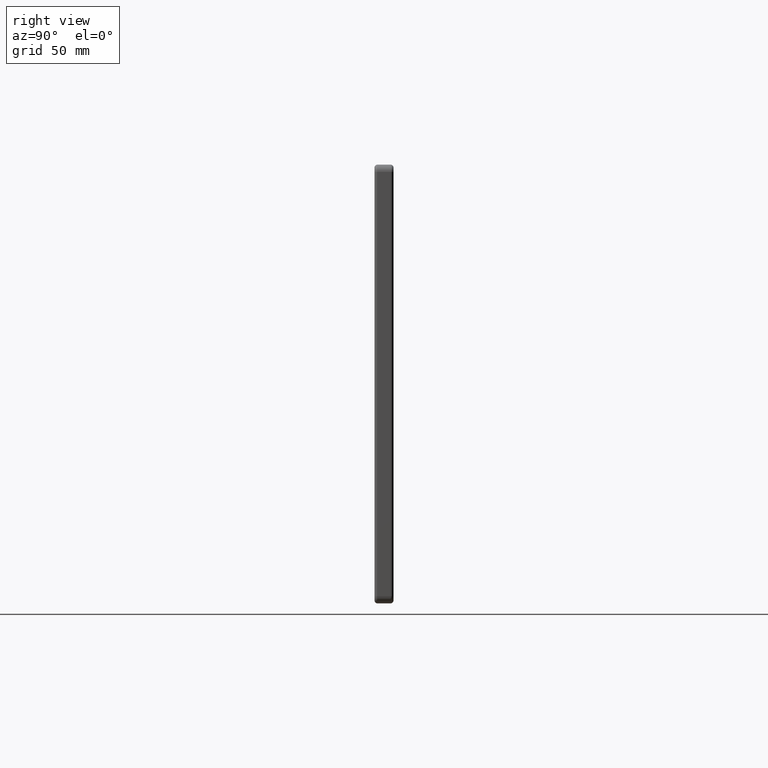
[diagram: clean part render]
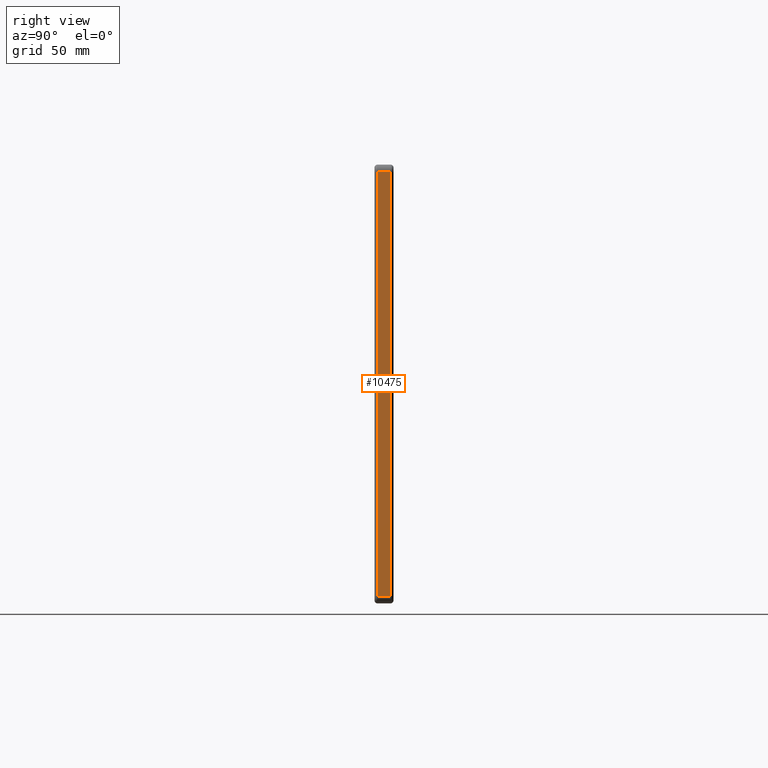
[diagram: same view with one face highlighted and labeled with its STEP entity id]
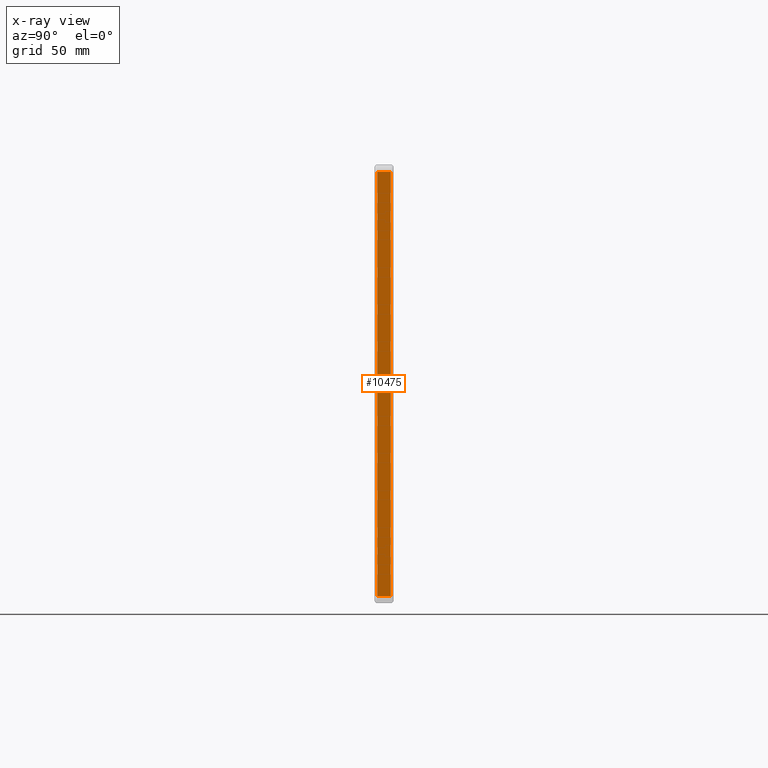
[diagram: x-ray of the same camera — body ghosted, the highlighted face saturated]
A machine part, right view. The second image highlights one B-rep face of the part: STEP entity #10475.
The next image is the same camera in x-ray: the body ghosted, the highlighted face saturated — about 0% of this face is hidden behind the body in this view.
In plain terms, the highlighted planar face has unit normal (-1, 0, 0).
Its self-contained STEP definition (entity closure, byte-faithful):
#308 = DIRECTION ( 'NONE',  ( 0.0000000000000000000, 0.0000000000000000000, -1.000000000000000000 ) ) ;
#775 = CARTESIAN_POINT ( 'NONE',  ( 200.0000000000000000, 6.500000000000000000, 145.0000000000000000 ) ) ;
#777 = DIRECTION ( 'NONE',  ( 0.0000000000000000000, 0.0000000000000000000, 1.000000000000000000 ) ) ;
#1195 = EDGE_LOOP ( 'NONE', ( #11722, #13183, #11294, #9077 ) ) ;
#1547 = DIRECTION ( 'NONE',  ( -0.0000000000000000000, 1.000000000000000000, -0.0000000000000000000 ) ) ;
#2339 = VECTOR ( 'NONE', #8188, 1000.000000000000000 ) ;
#2375 = LINE ( 'NONE', #3402, #13462 ) ;
#2900 = FACE_OUTER_BOUND ( 'NONE', #1195, .T. ) ;
#3402 = CARTESIAN_POINT ( 'NONE',  ( 200.0000000000000000, -4.500000000000000000, -145.0000000000000000 ) ) ;
#3484 = VECTOR ( 'NONE', #8224, 1000.000000000000000 ) ;
#4824 = LINE ( 'NONE', #775, #3484 ) ;
#5171 = LINE ( 'NONE', #7126, #2339 ) ;
#5897 = EDGE_CURVE ( 'NONE', #13592, #11126, #2375, .T. ) ;
#6429 = VERTEX_POINT ( 'NONE', #13043 ) ;
#7105 = CARTESIAN_POINT ( 'NONE',  ( 200.0000000000000000, 4.500000000000000000, -145.0000000000000000 ) ) ;
#7126 = CARTESIAN_POINT ( 'NONE',  ( 200.0000000000000000, 4.500000000000000000, 150.0000000000000000 ) ) ;
#7646 = EDGE_CURVE ( 'NONE', #6429, #13592, #4824, .T. ) ;
#7824 = EDGE_CURVE ( 'NONE', #11126, #10563, #10217, .T. ) ;
#7963 = EDGE_CURVE ( 'NONE', #10563, #6429, #5171, .T. ) ;
#8188 = DIRECTION ( 'NONE',  ( -0.0000000000000000000, -0.0000000000000000000, 1.000000000000000000 ) ) ;
#8224 = DIRECTION ( 'NONE',  ( 0.0000000000000000000, -1.000000000000000000, 0.0000000000000000000 ) ) ;
#8406 = AXIS2_PLACEMENT_3D ( 'NONE', #12102, #10312, #777 ) ;
#9077 = ORIENTED_EDGE ( 'NONE', *, *, #7963, .T. ) ;
#9142 = CARTESIAN_POINT ( 'NONE',  ( 200.0000000000000000, 6.500000000000000000, -145.0000000000000000 ) ) ;
#9688 = CARTESIAN_POINT ( 'NONE',  ( 200.0000000000000000, -4.500000000000000000, -145.0000000000000000 ) ) ;
#10217 = LINE ( 'NONE', #9142, #10378 ) ;
#10312 = DIRECTION ( 'NONE',  ( -1.000000000000000000, 0.0000000000000000000, 0.0000000000000000000 ) ) ;
#10378 = VECTOR ( 'NONE', #1547, 1000.000000000000000 ) ;
#10475 = ADVANCED_FACE ( 'NONE', ( #2900 ), #13055, .F. ) ;
#10563 = VERTEX_POINT ( 'NONE', #7105 ) ;
#11126 = VERTEX_POINT ( 'NONE', #9688 ) ;
#11294 = ORIENTED_EDGE ( 'NONE', *, *, #7824, .T. ) ;
#11722 = ORIENTED_EDGE ( 'NONE', *, *, #7646, .T. ) ;
#12102 = CARTESIAN_POINT ( 'NONE',  ( 200.0000000000000000, 6.500000000000000000, 150.0000000000000000 ) ) ;
#12429 = CARTESIAN_POINT ( 'NONE',  ( 200.0000000000000000, -4.500000000000000000, 145.0000000000000000 ) ) ;
#13043 = CARTESIAN_POINT ( 'NONE',  ( 200.0000000000000000, 4.500000000000000000, 145.0000000000000000 ) ) ;
#13055 = PLANE ( 'NONE',  #8406 ) ;
#13183 = ORIENTED_EDGE ( 'NONE', *, *, #5897, .T. ) ;
#13462 = VECTOR ( 'NONE', #308, 1000.000000000000000 ) ;
#13592 = VERTEX_POINT ( 'NONE', #12429 ) ;